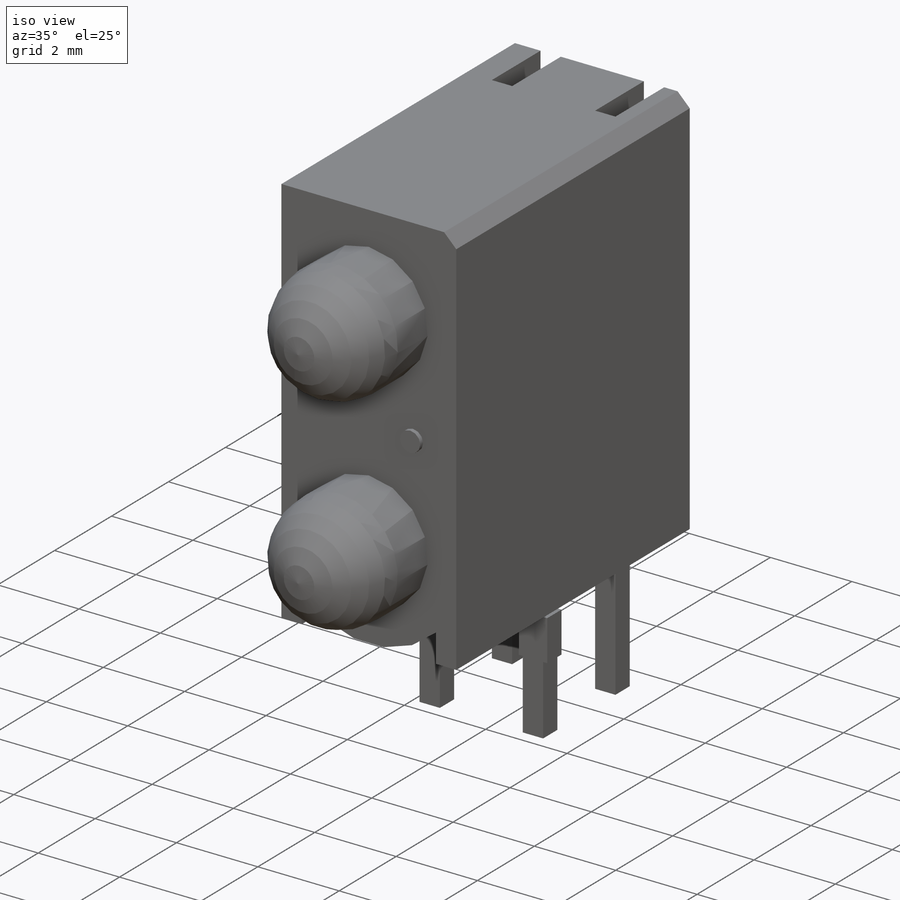
[diagram: iso view]
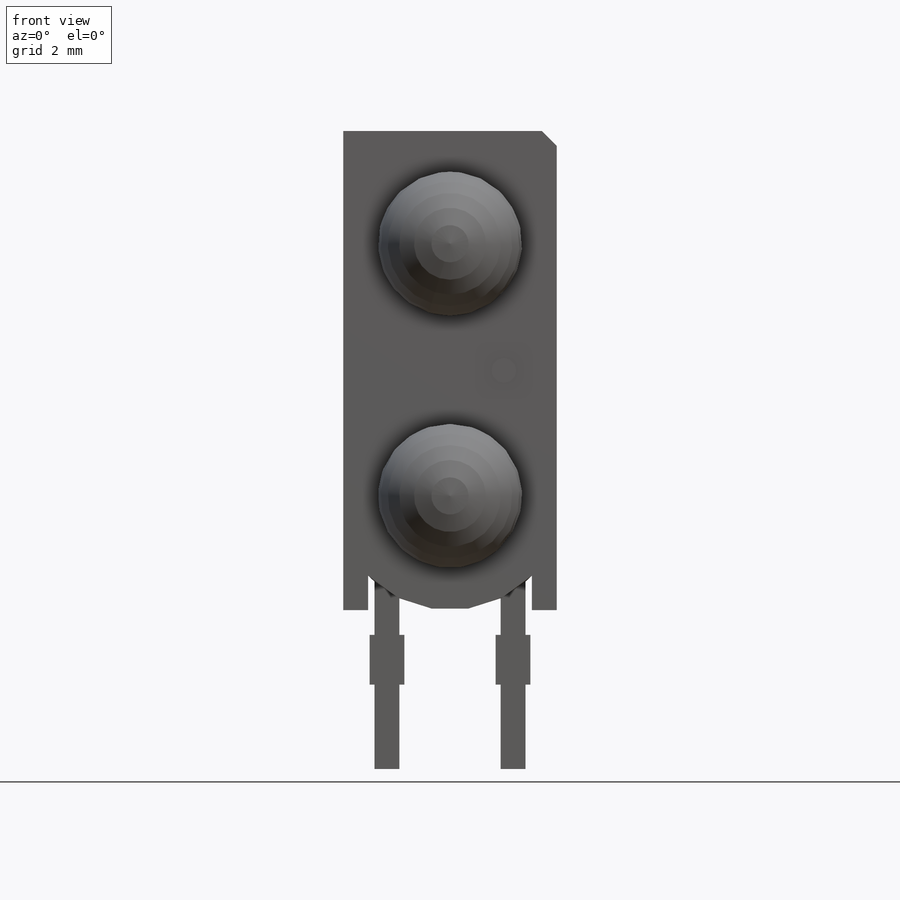
[diagram: front view]
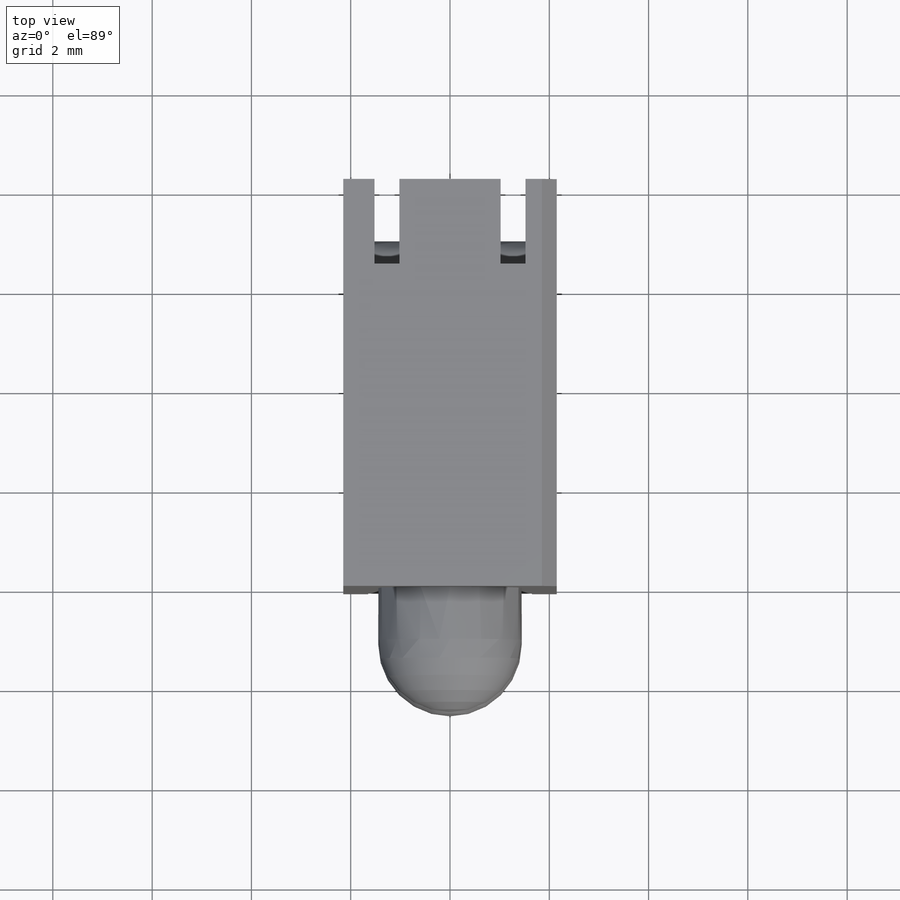
[diagram: top view]
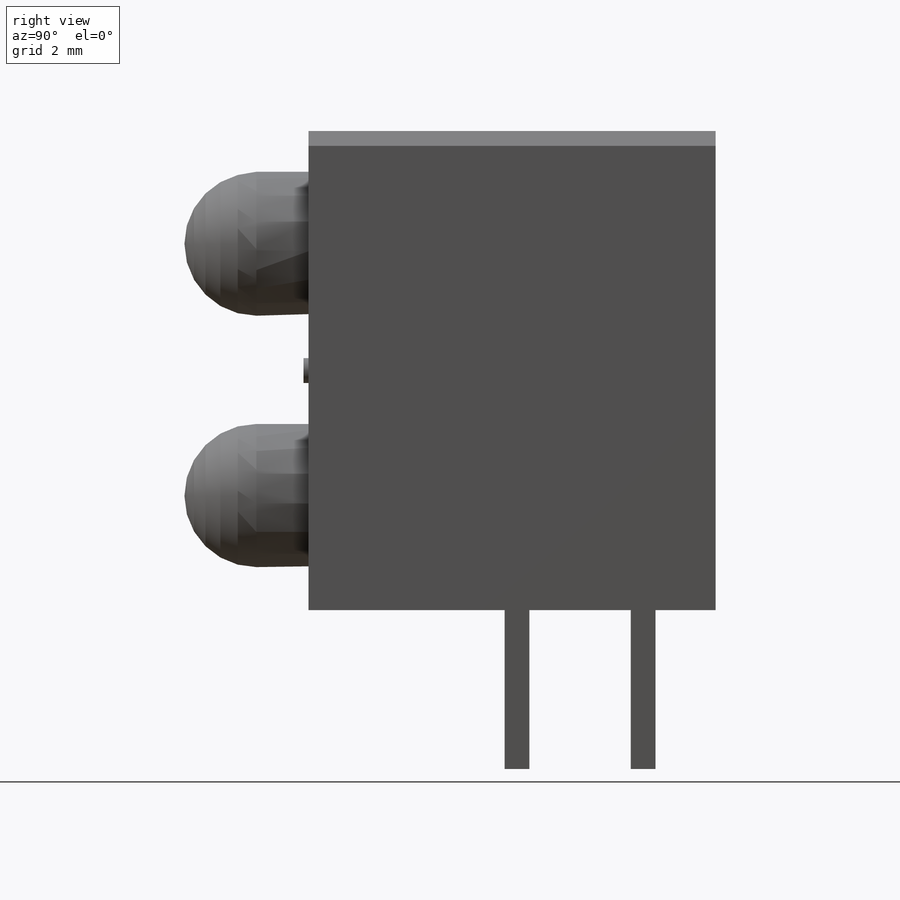
[diagram: right view]
SOLIDWORKS PART (.sldprt)
format: sldprt  version: not decoded by parser v0  size: 845,312 bytes
history: native  units: mm
features: sketch x12, extrude x6, cut_extrude x4, revolve x2, material x1, chamfer x1, fillet x1 (+12 scaffold rows collapsed)
feature tree (39):
  scaffold x12  (default folders/planes/origin — collapsed)
  material  "Material <not specified>"
  sketch  "Sketch1"  dims[D4=2.9mm D7=2.9mm D1=9.65mm D2=8.2mm D3=2.5mm D5=2.3mm D6=5.08mm D8=5.08mm]
  extrude  "Extrude1"  Depth=4.3mm
  revolve  "Revolve1"  [1 undecoded]
  sketch  "Sketch1<3>"  dims[D1=360.0deg]
  sketch  "Sketch2"  dims[D4=0.5mm D1=0.5mm D2=0.5mm D3=0.3mm]
  cut_extrude  "Cut-Extrude1"  [1 undecoded]
  extrude  "Extrude2"  [1 undecoded]
  sketch  "Sketch2<3>"  dims[D1=0.1mm]
  revolve  "Revolve2"  [1 undecoded]
  sketch  "Sketch1<5>"  dims[D1=360.0deg]
  chamfer  "Chamfer1"  Distance=0.3mm Angle=45deg
  sketch  "Sketch3"  dims[D1=0.5mm D2=0.5mm D3=0.5mm D4=4.2mm D5=2.54mm D6=2.54mm]
  cut_extrude  "Cut-Extrude2"  [1 undecoded]
  extrude  "Extrude3"  [1 undecoded]
  sketch  "Sketch3<4>"
  cut_extrude  "Cut-Extrude3"  [1 undecoded]
  sketch  "Sketch3<5>"
  extrude  "Extrude4"  [1 undecoded]
  sketch  "Sketch3<6>"
  extrude  "Extrude5"  [1 undecoded]
  sketch  "Sketch3<7>"  dims[D1=3.2mm]
  sketch  "Sketch4"  dims[D1=1.0mm D2=0.7mm D3=0.5mm]
  extrude  "Extrude6"  [1 undecoded]
  fillet  "Fillet1"  Radius=0.5mm
  sketch  "Sketch5"
  cut_extrude  "Cut-Extrude4"  Depth=0.01mm
decode coverage: 12 of 26 modeling features carry decoded parameters
note: 10 parameter values undecoded
summary: no parameter record found for 10 features
note: suppression state not decoded; provenance and decode notes live in map.json
